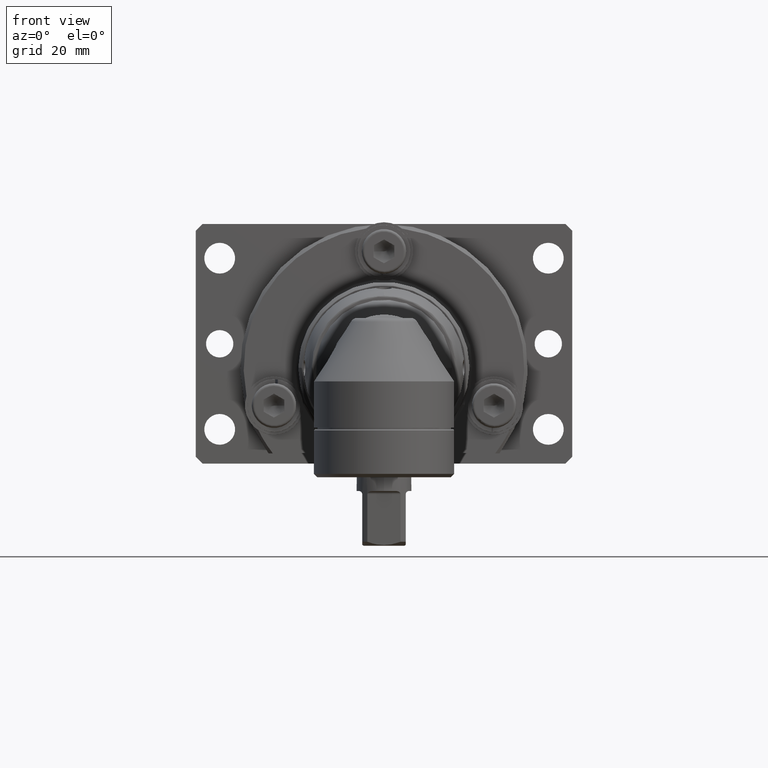
[diagram: clean part render]
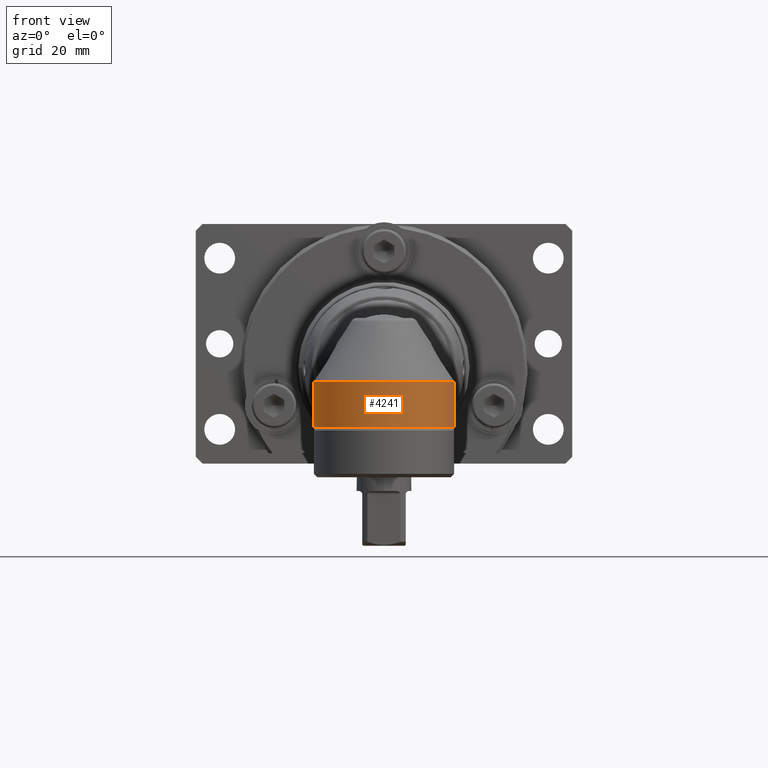
[diagram: same view with one face highlighted and labeled with its STEP entity id]
A machine part, front view. The second image highlights one B-rep face of the part: STEP entity #4241.
In plain terms, the highlighted cylindrical surface (partial cylindrical patch) has radius 20.5 mm, axis along (-0, 0, 1).
Its self-contained STEP definition (entity closure, byte-faithful):
#73=B_SPLINE_CURVE_WITH_KNOTS('',3,(#6612,#6613,#6614,#6615,#6616,#6617,
#6618,#6619,#6620,#6621,#6622,#6623,#6624,#6625,#6626,#6627,#6628,#6629,
#6630,#6631,#6632,#6633,#6634,#6635,#6636,#6637,#6638,#6639,#6640,#6641,
#6642,#6643,#6644,#6645),.UNSPECIFIED.,.F.,.F.,(4,3,3,3,3,3,3,3,3,3,3,4),
(0.234544023973082,0.262796997520215,0.290397869650182,0.331704603867592,
0.370622186141676,0.38449723444356,0.413228064693143,0.442475567936434,
0.456954822146288,0.48479631234327,0.51317207914818,0.534277782739742),
 .UNSPECIFIED.);
#74=B_SPLINE_CURVE_WITH_KNOTS('',3,(#6647,#6648,#6649,#6650,#6651,#6652,
#6653,#6654,#6655,#6656,#6657,#6658,#6659,#6660,#6661,#6662,#6663,#6664,
#6665,#6666,#6667,#6668,#6669,#6670,#6671,#6672,#6673,#6674,#6675,#6676,
#6677,#6678,#6679,#6680,#6681,#6682,#6683,#6684,#6685,#6686,#6687,#6688,
#6689,#6690,#6691,#6692,#6693,#6694,#6695,#6696,#6697,#6698,#6699,#6700,
#6701,#6702,#6703,#6704,#6705,#6706,#6707,#6708,#6709,#6710,#6711,#6712,
#6713),.UNSPECIFIED.,.F.,.F.,(4,3,3,3,3,3,3,3,3,3,3,3,3,3,3,3,3,3,3,3,3,
3,4),(-11.5980340376678,-11.4725289521331,-11.3457054186346,-11.2393191086624,
-11.1957072615547,-11.0984199588385,-10.9954268995911,-10.8924338403436,
-10.7636987279947,-10.6309104324211,-10.4923678722533,-10.3916510386393,
-10.2481850171785,-10.1772216188127,-10.0298263382764,-9.88472163138326,
-9.73618106402544,-9.58764049666763,-9.47116259129661,-9.32376275352874,
-9.18553870524767,-9.03971891069579,-8.96108786796611),.UNSPECIFIED.);
#171=LINE('',#6608,#378);
#378=VECTOR('',#5150,20.5);
#584=CYLINDRICAL_SURFACE('',#4520,20.5);
#723=FACE_OUTER_BOUND('',#971,.T.);
#971=EDGE_LOOP('',(#2783,#2784,#2785,#2786,#2787));
#1276=CIRCLE('',#4521,20.5);
#1277=CIRCLE('',#4522,20.5);
#1640=VERTEX_POINT('',#6606);
#1641=VERTEX_POINT('',#6607);
#1642=VERTEX_POINT('',#6609);
#1643=VERTEX_POINT('',#6611);
#1644=VERTEX_POINT('',#6646);
#2098=EDGE_CURVE('',#1640,#1641,#171,.T.);
#2099=EDGE_CURVE('',#1642,#1640,#1276,.T.);
#2100=EDGE_CURVE('',#1643,#1642,#73,.T.);
#2101=EDGE_CURVE('',#1644,#1643,#74,.T.);
#2102=EDGE_CURVE('',#1644,#1641,#1277,.T.);
#2783=ORIENTED_EDGE('',*,*,#2098,.F.);
#2784=ORIENTED_EDGE('',*,*,#2099,.F.);
#2785=ORIENTED_EDGE('',*,*,#2100,.F.);
#2786=ORIENTED_EDGE('',*,*,#2101,.F.);
#2787=ORIENTED_EDGE('',*,*,#2102,.T.);
#4241=ADVANCED_FACE('',(#723),#584,.T.);
#4520=AXIS2_PLACEMENT_3D('',#6605,#5148,#5149);
#4521=AXIS2_PLACEMENT_3D('',#6610,#5151,#5152);
#4522=AXIS2_PLACEMENT_3D('',#6714,#5153,#5154);
#5148=DIRECTION('center_axis',(-2.51278438236415E-15,2.47358770109277E-30,
1.));
#5149=DIRECTION('ref_axis',(-1.,6.70462140602243E-16,-2.39031970244941E-15));
#5150=DIRECTION('',(2.51278438236415E-15,-2.47358770109276E-30,-1.));
#5151=DIRECTION('center_axis',(-2.51278438236415E-15,2.47358770109277E-30,
1.));
#5152=DIRECTION('ref_axis',(1.,-6.70462140602243E-16,2.51278438236415E-15));
#5153=DIRECTION('center_axis',(-2.51278438236415E-15,2.47358770109277E-30,
1.));
#5154=DIRECTION('ref_axis',(1.,-6.70462140602243E-16,2.51278438236415E-15));
#6605=CARTESIAN_POINT('Origin',(2.70124321104146E-14,-2.65910677867472E-29,
-10.75));
#6606=CARTESIAN_POINT('',(20.5,-1.12339479440939E-14,-3.99999999999995));
#6607=CARTESIAN_POINT('',(20.5,-1.12339479440939E-14,-17.5));
#6608=CARTESIAN_POINT('',(20.5,-1.12339479440939E-14,-10.75));
#6609=CARTESIAN_POINT('',(-17.2067707880069,11.1434751782825,-4.00000000000036));
#6610=CARTESIAN_POINT('Origin',(1.00511375294566E-14,-9.89435080437107E-30,
-4.));
#6611=CARTESIAN_POINT('',(-15.7671893887908,13.1013640044845,-2.60217968230914));
#6612=CARTESIAN_POINT('Ctrl Pts',(-15.7741362081401,13.1032583720801,-2.60034841894513));
#6613=CARTESIAN_POINT('Ctrl Pts',(-15.8011717965131,13.0709565460702,-2.6836678694566));
#6614=CARTESIAN_POINT('Ctrl Pts',(-15.8304980028156,13.0356028525099,-2.76499713143143));
#6615=CARTESIAN_POINT('Ctrl Pts',(-15.86221855735,12.9969460598019,-2.84383948777995));
#6616=CARTESIAN_POINT('Ctrl Pts',(-15.8932069759012,12.9591814970486,-2.92086209895291));
#6617=CARTESIAN_POINT('Ctrl Pts',(-15.9264811288922,12.9182648693124,-2.99551108956452));
#6618=CARTESIAN_POINT('Ctrl Pts',(-15.9621051030415,12.8739745257069,-3.0672903477255));
#6619=CARTESIAN_POINT('Ctrl Pts',(-16.0154389420957,12.8076659760878,-3.17475346753744));
#6620=CARTESIAN_POINT('Ctrl Pts',(-16.07300238984,12.7350751259931,-3.27369009340942));
#6621=CARTESIAN_POINT('Ctrl Pts',(-16.1346010399231,12.6559982801713,-3.36371113651727));
#6622=CARTESIAN_POINT('Ctrl Pts',(-16.1926368681725,12.5814951825153,-3.4485254269211));
#6623=CARTESIAN_POINT('Ctrl Pts',(-16.2542553052942,12.5012335160921,-3.52542635852061));
#6624=CARTESIAN_POINT('Ctrl Pts',(-16.3192607543781,12.4150187619435,-3.59406861461981));
#6625=CARTESIAN_POINT('Ctrl Pts',(-16.3424367507587,12.3842811413554,-3.61854121962953));
#6626=CARTESIAN_POINT('Ctrl Pts',(-16.3660429026567,12.3527866748464,-3.64196382952039));
#6627=CARTESIAN_POINT('Ctrl Pts',(-16.3900690133757,12.3205261540479,-3.66431989284251));
#6628=CARTESIAN_POINT('Ctrl Pts',(-16.4398194786428,12.2537248336733,-3.71061221892182));
#6629=CARTESIAN_POINT('Ctrl Pts',(-16.4905392953154,12.1847618727672,-3.75156709049689));
#6630=CARTESIAN_POINT('Ctrl Pts',(-16.5419663089727,12.113878877799,-3.78750087794324));
#6631=CARTESIAN_POINT('Ctrl Pts',(-16.5943181462037,12.0417211779618,-3.82408087078547));
#6632=CARTESIAN_POINT('Ctrl Pts',(-16.6474024329691,11.9675732472883,-3.85545797658089));
#6633=CARTESIAN_POINT('Ctrl Pts',(-16.7009842405099,11.8916738742104,-3.88199648851888));
#6634=CARTESIAN_POINT('Ctrl Pts',(-16.7275104231366,11.8540991688407,-3.89513463085893));
#6635=CARTESIAN_POINT('Ctrl Pts',(-16.7541592170363,11.8160950181209,-3.907087338392));
#6636=CARTESIAN_POINT('Ctrl Pts',(-16.7809061621671,11.7776895251053,-3.91790104559727));
#6637=CARTESIAN_POINT('Ctrl Pts',(-16.8323366295011,11.7038413736876,-3.93869422449897));
#6638=CARTESIAN_POINT('Ctrl Pts',(-16.8838658631522,11.6288914130609,-3.955173119831));
#6639=CARTESIAN_POINT('Ctrl Pts',(-16.9352521259214,11.5531491421723,-3.9677349510881));
#6640=CARTESIAN_POINT('Ctrl Pts',(-16.9876244881403,11.4759533814282,-3.9805378431701));
#6641=CARTESIAN_POINT('Ctrl Pts',(-17.0398481503305,11.397934366803,-3.98927216001876));
#6642=CARTESIAN_POINT('Ctrl Pts',(-17.0917112621539,11.319408927184,-3.99438898199011));
#6643=CARTESIAN_POINT('Ctrl Pts',(-17.1302866942472,11.2610022358551,-3.99819483959391));
#6644=CARTESIAN_POINT('Ctrl Pts',(-17.1686635974531,11.2023151460189,-4.00000005461902));
#6645=CARTESIAN_POINT('Ctrl Pts',(-17.2067707172178,11.1434753019382,-3.99999954522936));
#6646=CARTESIAN_POINT('',(4.61381729658968E-14,20.5,-17.5));
#6647=CARTESIAN_POINT('Ctrl Pts',(-6.72662969395605E-9,20.5003531065002,
-17.4999996773772));
#6648=CARTESIAN_POINT('Ctrl Pts',(-0.381170285743658,20.5003458452305,-17.4999996906758));
#6649=CARTESIAN_POINT('Ctrl Pts',(-0.762268718253138,20.4895010922554,-17.4848101948624));
#6650=CARTESIAN_POINT('Ctrl Pts',(-1.14183769690407,20.4682201139266,-17.4548231108921));
#6651=CARTESIAN_POINT('Ctrl Pts',(-1.52539409921106,20.446715576031,-17.4245210085333));
#6652=CARTESIAN_POINT('Ctrl Pts',(-1.90738951265691,20.4145541616023,-17.3791085423287));
#6653=CARTESIAN_POINT('Ctrl Pts',(-2.28630475194292,20.372120894504,-17.3189482870028));
#6654=CARTESIAN_POINT('Ctrl Pts',(-2.60415896233969,20.3365256182795,-17.2684826723447));
#6655=CARTESIAN_POINT('Ctrl Pts',(-2.91984566711547,20.2937017232435,-17.2076386026192));
#6656=CARTESIAN_POINT('Ctrl Pts',(-3.23245427593959,20.2438627296494,-17.1366096164764));
#6657=CARTESIAN_POINT('Ctrl Pts',(-3.36060458828833,20.2234318060729,-17.1074920985864));
#6658=CARTESIAN_POINT('Ctrl Pts',(-3.48825964671098,20.2018181848808,-17.0766893973585));
#6659=CARTESIAN_POINT('Ctrl Pts',(-3.61533668871024,20.1790385417138,-17.0442126891994));
#6660=CARTESIAN_POINT('Ctrl Pts',(-3.89881430942985,20.1282227614263,-16.9717651423186));
#6661=CARTESIAN_POINT('Ctrl Pts',(-4.17941545958911,20.0716024659941,-16.8909843929337));
#6662=CARTESIAN_POINT('Ctrl Pts',(-4.45671032881427,20.0096116376183,-16.8022154414996));
#6663=CARTESIAN_POINT('Ctrl Pts',(-4.75026813232758,19.9439851387696,-16.7082403222484));
#6664=CARTESIAN_POINT('Ctrl Pts',(-5.04011990544971,19.8723396066451,-16.6053121914493));
#6665=CARTESIAN_POINT('Ctrl Pts',(-5.32575978734173,19.7952255970692,-16.4938920079135));
#6666=CARTESIAN_POINT('Ctrl Pts',(-5.61139966923375,19.7181115874933,-16.3824718243777));
#6667=CARTESIAN_POINT('Ctrl Pts',(-5.89282711231474,19.6355294376722,-16.2625598128179));
#6668=CARTESIAN_POINT('Ctrl Pts',(-6.16954869950719,19.5480618817362,-16.1346672763164));
#6669=CARTESIAN_POINT('Ctrl Pts',(-6.51543399388429,19.4387327121534,-15.9748093191355));
#6670=CARTESIAN_POINT('Ctrl Pts',(-6.85406215566218,19.3217484198942,-15.8026148226205));
#6671=CARTESIAN_POINT('Ctrl Pts',(-7.18500180919253,19.1980771178161,-15.6189630091341));
#6672=CARTESIAN_POINT('Ctrl Pts',(-7.52636099029073,19.0705120649359,-15.4295289779138));
#6673=CARTESIAN_POINT('Ctrl Pts',(-7.85954021518773,18.9358318951742,-15.2279044672848));
#6674=CARTESIAN_POINT('Ctrl Pts',(-8.18404420244504,18.7950689022912,-15.015010306467));
#6675=CARTESIAN_POINT('Ctrl Pts',(-8.52261028603769,18.6482060682843,-14.7928905634801));
#6676=CARTESIAN_POINT('Ctrl Pts',(-8.8517334477239,18.4947213730242,-14.5585029513677));
#6677=CARTESIAN_POINT('Ctrl Pts',(-9.17082154595317,18.3357613019435,-14.312851245217));
#6678=CARTESIAN_POINT('Ctrl Pts',(-9.40279028435841,18.2202014695648,-14.1342688515799));
#6679=CARTESIAN_POINT('Ctrl Pts',(-9.6294549734859,18.1017473756018,-13.9497325665265));
#6680=CARTESIAN_POINT('Ctrl Pts',(-9.85057672886621,17.9808334937332,-13.7596166712634));
#6681=CARTESIAN_POINT('Ctrl Pts',(-10.1655534548467,17.8085978013606,-13.4888062205058));
#6682=CARTESIAN_POINT('Ctrl Pts',(-10.4692849011844,17.6313707153336,-13.2066758264697));
#6683=CARTESIAN_POINT('Ctrl Pts',(-10.7618270812366,17.4507039649877,-12.9133619657896));
#6684=CARTESIAN_POINT('Ctrl Pts',(-10.906528851387,17.3613397626094,-12.7682784949462));
#6685=CARTESIAN_POINT('Ctrl Pts',(-11.0484923840079,17.2711339428836,-12.6204583117076));
#6686=CARTESIAN_POINT('Ctrl Pts',(-11.1877207757635,17.1802745789472,-12.4699150146811));
#6687=CARTESIAN_POINT('Ctrl Pts',(-11.4769065861113,16.9915541717347,-12.1572274601237));
#6688=CARTESIAN_POINT('Ctrl Pts',(-11.7542193917262,16.8000590108276,-11.8336191024183));
#6689=CARTESIAN_POINT('Ctrl Pts',(-12.0195207442277,16.6076079070509,-11.4992532157155));
#6690=CARTESIAN_POINT('Ctrl Pts',(-12.2806992219444,16.4181475599951,-11.1700834905481));
#6691=CARTESIAN_POINT('Ctrl Pts',(-12.5302356603793,16.2277615619711,-10.8304882124543));
#6692=CARTESIAN_POINT('Ctrl Pts',(-12.7680003747518,16.0382083371984,-10.4806730238655));
#6693=CARTESIAN_POINT('Ctrl Pts',(-13.0113949987218,15.8441667781402,-10.1225747395582));
#6694=CARTESIAN_POINT('Ctrl Pts',(-13.2424531868738,15.6509984987227,-9.75376672030452));
#6695=CARTESIAN_POINT('Ctrl Pts',(-13.4610509892412,15.4606037275693,-9.37452183738585));
#6696=CARTESIAN_POINT('Ctrl Pts',(-13.6796487916086,15.270208956416,-8.99527695446719));
#6697=CARTESIAN_POINT('Ctrl Pts',(-13.8857861337789,15.0825882728382,-8.60559529705185));
#6698=CARTESIAN_POINT('Ctrl Pts',(-14.0793594426728,14.8996466496626,-8.20580125340864));
#6699=CARTESIAN_POINT('Ctrl Pts',(-14.2311497175906,14.75619319818,-7.89230323995891));
#6700=CARTESIAN_POINT('Ctrl Pts',(-14.3752149316435,14.6156171320055,-7.57258821282049));
#6701=CARTESIAN_POINT('Ctrl Pts',(-14.5109054192441,14.4797158534718,-7.24655702559055));
#6702=CARTESIAN_POINT('Ctrl Pts',(-14.6826182929882,14.307736229143,-6.83397281958273));
#6703=CARTESIAN_POINT('Ctrl Pts',(-14.8412412905452,14.1429176020593,-6.4113055247787));
#6704=CARTESIAN_POINT('Ctrl Pts',(-14.9854020212771,13.9889093535146,-5.97831172488897));
#6705=CARTESIAN_POINT('Ctrl Pts',(-15.1205886002224,13.844488274734,-5.57227222845738));
#6706=CARTESIAN_POINT('Ctrl Pts',(-15.2430575838043,13.7095743271631,-5.15715226357321));
#6707=CARTESIAN_POINT('Ctrl Pts',(-15.3516980553462,13.5871742281827,-4.73278710894228));
#6708=CARTESIAN_POINT('Ctrl Pts',(-15.4663085839573,13.4580479472757,-4.28510206113187));
#6709=CARTESIAN_POINT('Ctrl Pts',(-15.5655287565441,13.3428495185839,-3.82712766888359));
#6710=CARTESIAN_POINT('Ctrl Pts',(-15.6482334777159,13.2450215589141,-3.36150668430893));
#6711=CARTESIAN_POINT('Ctrl Pts',(-15.6928307046177,13.192269362269,-3.110427853438));
#6712=CARTESIAN_POINT('Ctrl Pts',(-15.7326261331706,13.1445676903566,-2.85712630156496));
#6713=CARTESIAN_POINT('Ctrl Pts',(-15.7674464126202,13.1024532352347,-2.60202092948874));
#6714=CARTESIAN_POINT('Origin',(4.39737266913726E-14,-4.32877847691234E-29,
-17.5));